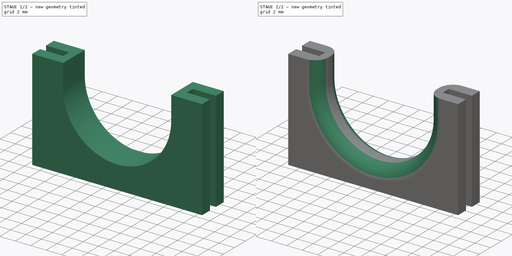
[diagram: build sequence overview — one tinted view per stage of 2, left to right]
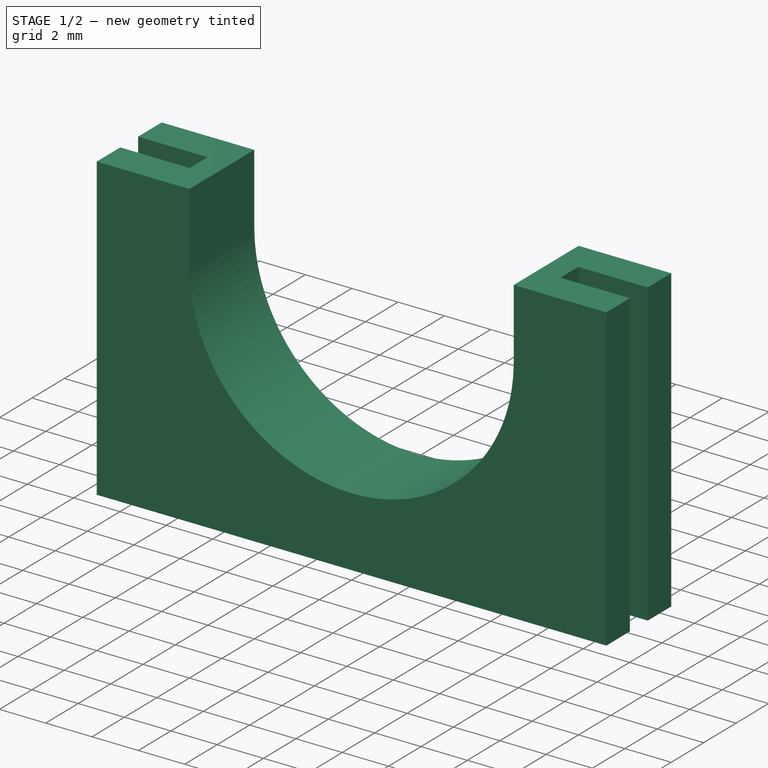
[diagram: stage 1 of 2 — iso view after this stage's code; geometry added in this stage tinted green]
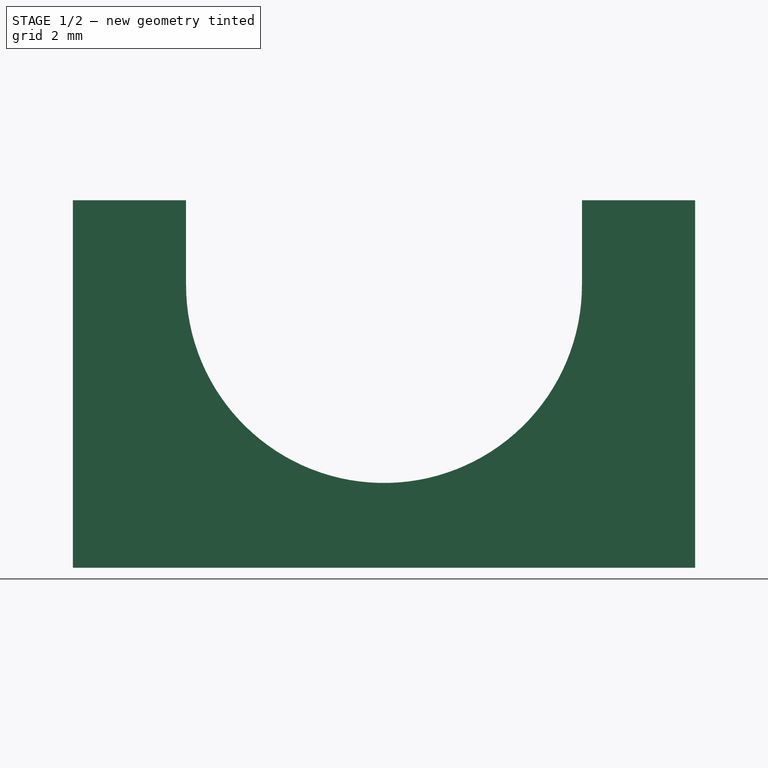
[diagram: stage 1 of 2 — front view after this stage's code; geometry added in this stage tinted green]
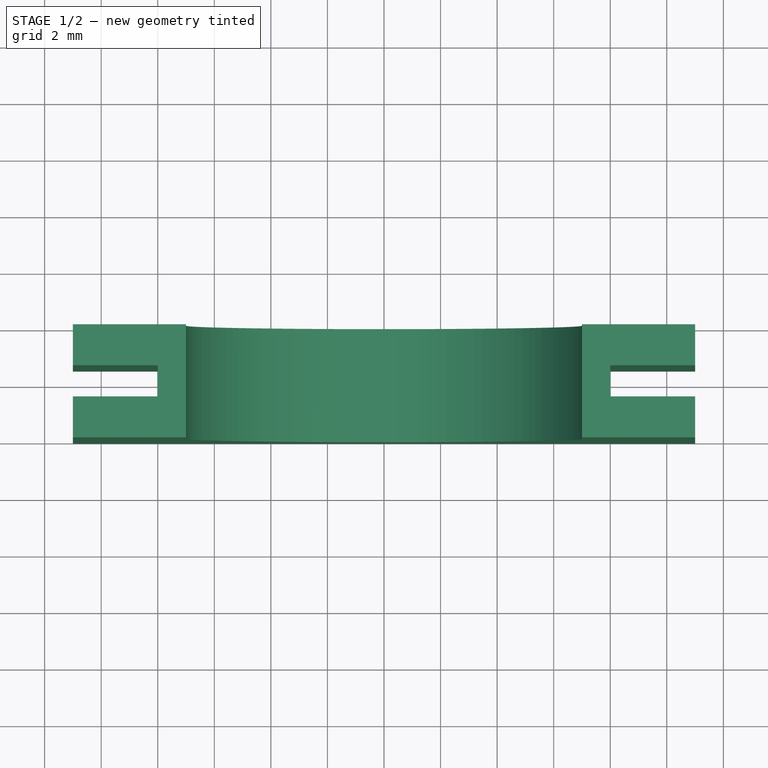
[diagram: stage 1 of 2 — top view after this stage's code; geometry added in this stage tinted green]
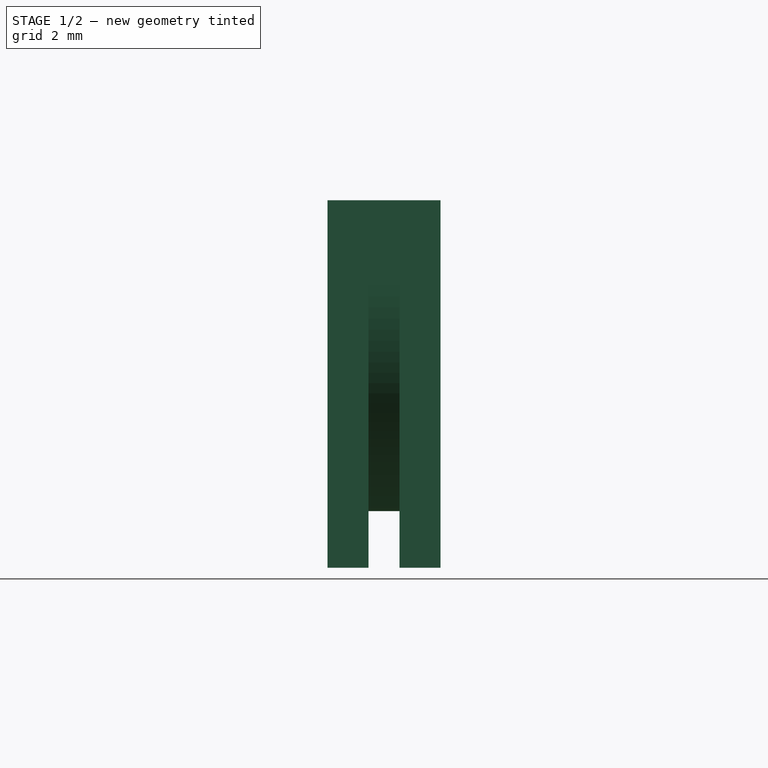
[diagram: stage 1 of 2 — right view after this stage's code; geometry added in this stage tinted green]
FCSTD DOCUMENT  (FreeCAD 0.19R24276 (Git))
Label: Kantenschutz
License: All rights reserved
LicenseURL: http://en.wikipedia.org/wiki/All_rights_reserved
objects: Sketcher::SketchObject×2, PartDesign::Pad×1, PartDesign::Pocket×1, PartDesign::Fillet×1, PartDesign::Body×1
note: 9 computed .brp shape members not serialized (recipe doc carries the construction recipe); baked Part::Feature solids carry a one-line shape summary decoded from their .brp

FEATURE [Sketcher::SketchObject] Sketch
  FullyConstrained = true
  MapMode = 5
  Placement = pos=(0,0,0) rot=(1,0,0;1.5708rad)
  Support = -> [XZ_Plane]
  sketch-geometry (9):
    g0: LineSegment StartX=11 StartY=0 StartZ=0 EndX=-11 EndY=0 EndZ=0
    g1: LineSegment StartX=-11 StartY=0 StartZ=0 EndX=-11 EndY=13 EndZ=0
    g2: LineSegment StartX=11 StartY=13 StartZ=0 EndX=11 EndY=0 EndZ=0
    g3: LineSegment StartX=-11 StartY=13 StartZ=0 EndX=-7 EndY=13 EndZ=0
    g4: LineSegment StartX=-7 StartY=13 StartZ=0 EndX=-7 EndY=10 EndZ=0
    g5: LineSegment StartX=11 StartY=13 StartZ=0 EndX=7 EndY=13 EndZ=0
    g6: LineSegment StartX=7 StartY=13 StartZ=0 EndX=7 EndY=10 EndZ=0
    g7: ArcOfCircle CenterX=2.799e-13 CenterY=10 CenterZ=0 NormalX=0 NormalY=0 NormalZ=1 AngleXU=0 Radius=7 StartAngle=3.14159 EndAngle=6.28319
    g8: GeomPoint X=0 Y=3 Z=0
  constraints (23):
    c: Coincident(g0,g1)
    c: Coincident(g2,g0)
    c: Vertical(g1)
    c: Vertical(g2)
    c: PointOnObject(g0,g-1)
    c: Coincident(g3,g1)
    c: Horizontal(g3)
    c: Coincident(g4,g3)
    c: Vertical(g4)
    c: Coincident(g2,g5)
    c: Horizontal(g5)
    c: Coincident(g5,g6)
    c: Coincident(g7,g6)
    c: Symmetric(g3,g5,g-2)
    c: Symmetric(g0,g0,g-2)
    c: Symmetric(g4,g6,g-2)
    c: DistanceX(g3,g5) = 14
    c: PointOnObject(g8,g7)
    c: PointOnObject(g8,g-2)
    c: DistanceY(g8,g5) = 10
    c: Tangent(g7,g4) = -1.5708
    c: DistanceY(g0,g8) = 3
    c: DistanceX(g5,g5) = 4
FEATURE [PartDesign::Pad] Pad
  Direction = (1,1,1)
  Length = 4
  Length2 = 100
  Midplane = true
  Placement = pos=(0,0,0) rot=(1,0,0;1.5708rad)
  Profile = -> Sketch
  Type = 0
FEATURE [Sketcher::SketchObject] Sketch001
  FullyConstrained = true
  MapMode = 5
  Placement = pos=(0,0,0) rot=(1,0,0;1.5708rad)
  Support = -> [XZ_Plane]
  sketch-geometry (8):
    g0: LineSegment StartX=8 StartY=10 StartZ=0 EndX=8 EndY=16 EndZ=0
    g1: LineSegment StartX=8 StartY=16 StartZ=0 EndX=12 EndY=16 EndZ=0
    g2: LineSegment StartX=12 StartY=16 StartZ=0 EndX=12 EndY=0 EndZ=0
    g3: LineSegment StartX=12 StartY=0 StartZ=0 EndX=-12 EndY=0 EndZ=0
    g4: LineSegment StartX=-12 StartY=0 StartZ=0 EndX=-12 EndY=16 EndZ=0
    g5: LineSegment StartX=-12 StartY=16 StartZ=0 EndX=-8 EndY=16 EndZ=0
    g6: LineSegment StartX=-8 StartY=16 StartZ=0 EndX=-8 EndY=10 EndZ=0
    g7: ArcOfCircle CenterX=0 CenterY=10 CenterZ=0 NormalX=0 NormalY=0 NormalZ=1 AngleXU=0 Radius=8 StartAngle=3.14159 EndAngle=6.28319
  constraints (21):
    c: Vertical(g0)
    c: Coincident(g0,g1)
    c: Coincident(g1,g2)
    c: PointOnObject(g2,g-1)
    c: Vertical(g2)
    c: Coincident(g2,g3)
    c: Coincident(g3,g4)
    c: Vertical(g4)
    c: Coincident(g4,g5)
    c: Horizontal(g5)
    c: Coincident(g5,g6)
    c: Vertical(g6)
    c: Tangent(g7,g6) = -1.5708
    c: Horizontal(g1)
    c: Tangent(g7,g0) = -1.5708
    c: Symmetric(g0,g5,g-2)
    c: Symmetric(g2,g3,g-2)
    c: DistanceX(g5,g0) = 16
    c: DistanceX(g1,g1) = 4
    c: DistanceY(g2,g2) = 16
    c: DistanceY(g2,g7) = 10
FEATURE [PartDesign::Pocket] Pocket
  BaseFeature = -> Pad
  Length = 1.1
  Length2 = 100
  Midplane = true
  Placement = pos=(0,0,0) rot=(1,0,0;1.5708rad)
  Profile = -> Sketch001
  Type = 0
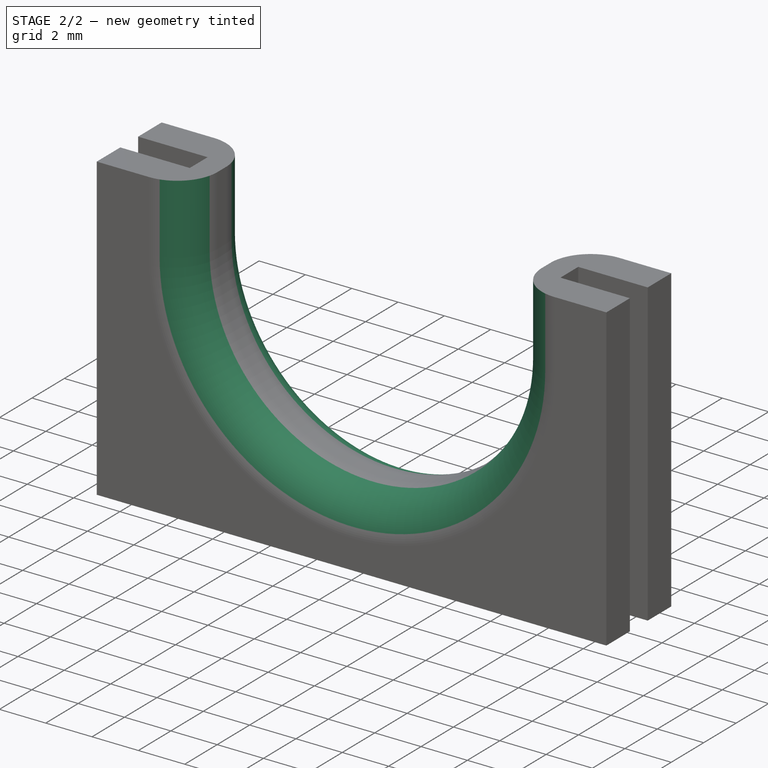
[diagram: stage 2 of 2 — iso view after this stage's code; geometry added in this stage tinted green]
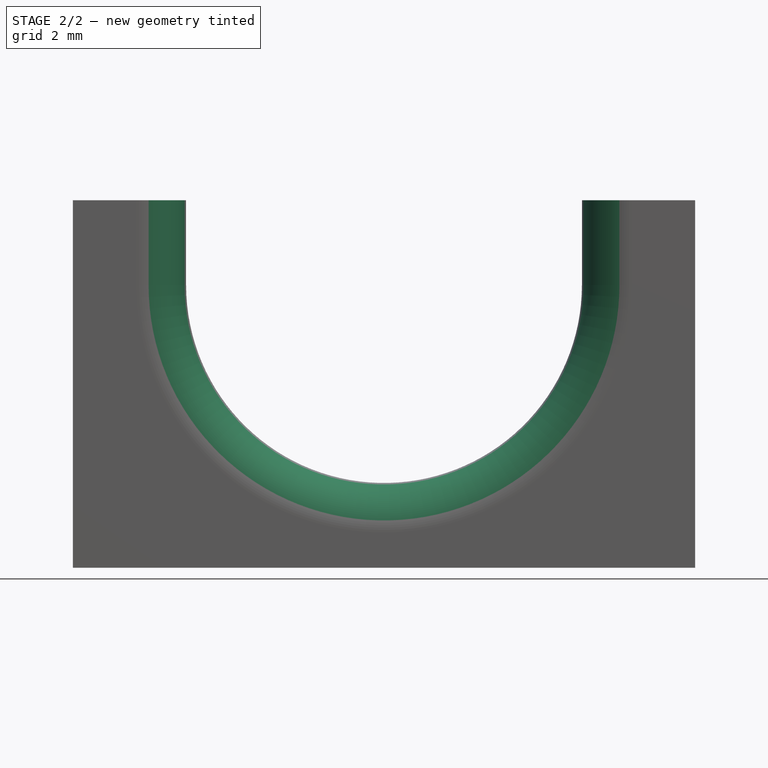
[diagram: stage 2 of 2 — front view after this stage's code; geometry added in this stage tinted green]
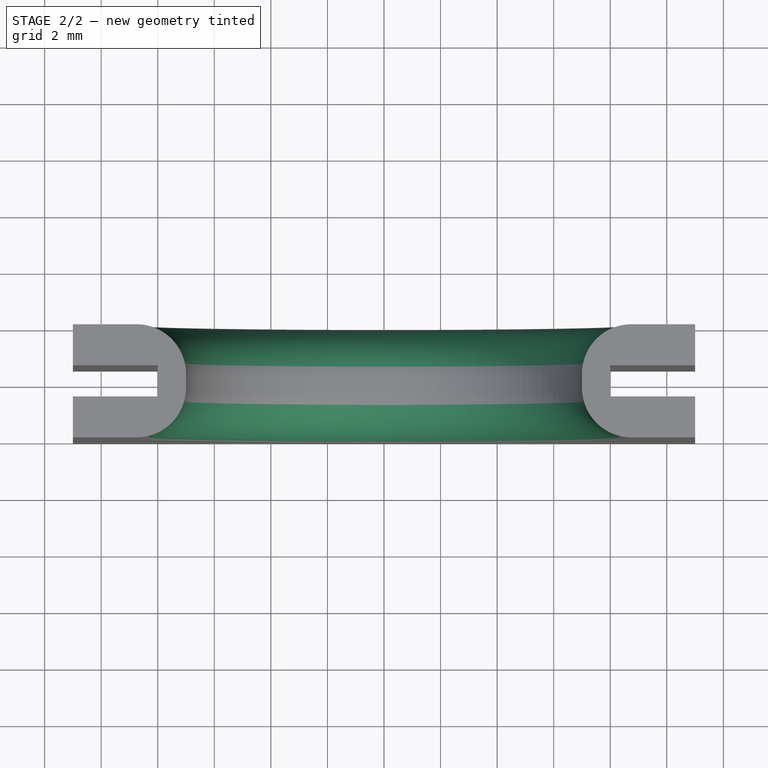
[diagram: stage 2 of 2 — top view after this stage's code; geometry added in this stage tinted green]
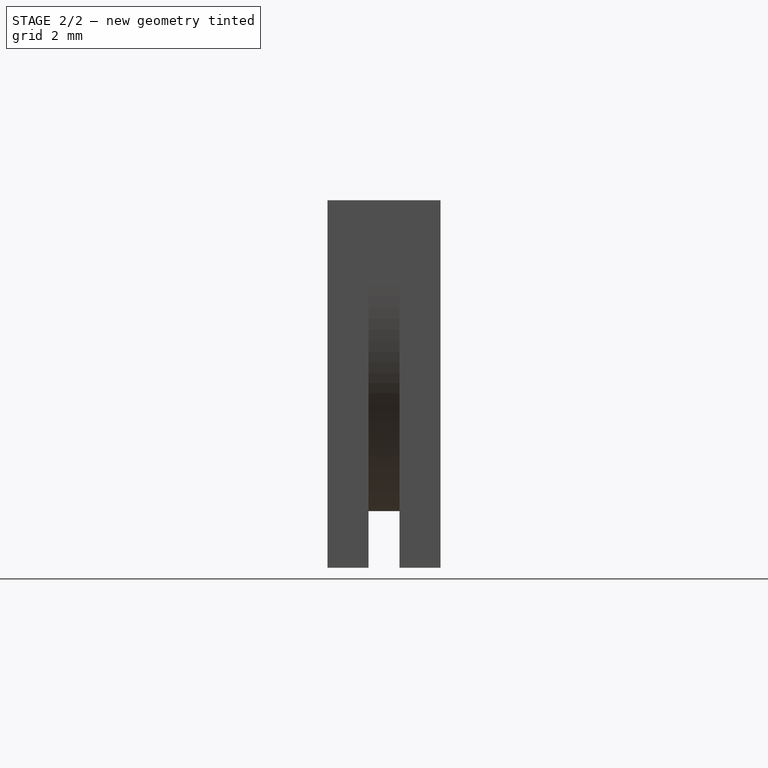
[diagram: stage 2 of 2 — right view after this stage's code; geometry added in this stage tinted green]
FEATURE [PartDesign::Fillet] Fillet
  Base = -> Pocket [Edge8,Edge29]
  BaseFeature = -> Pocket
  Placement = pos=(0,0,0) rot=(1,0,0;1.5708rad)
  Radius = 1.75
  SupportTransform = false
FEATURE [PartDesign::Body] Body
  Group = -> [Sketch,Pad,Sketch001,Pocket,Fillet]
  Origin = -> Origin
  Tip = -> Fillet
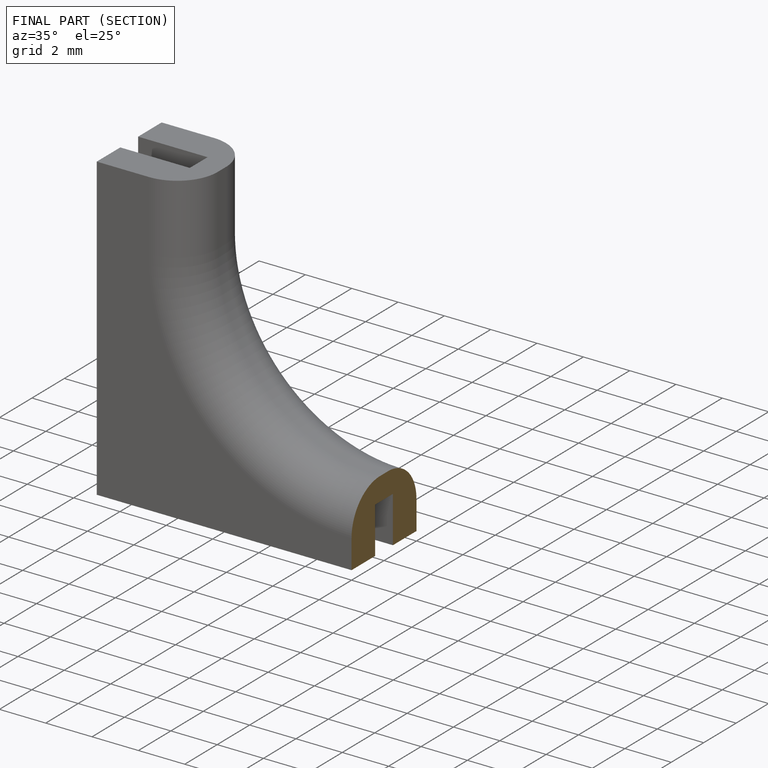
[diagram: finished part — half-section view (interior)]
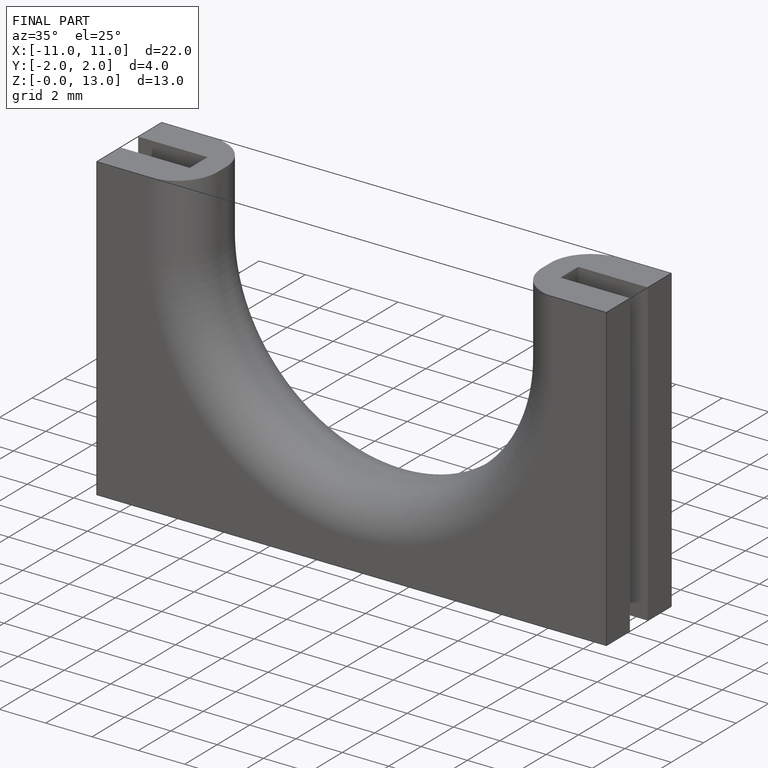
[diagram: finished part — iso view with bounding-box wireframe]
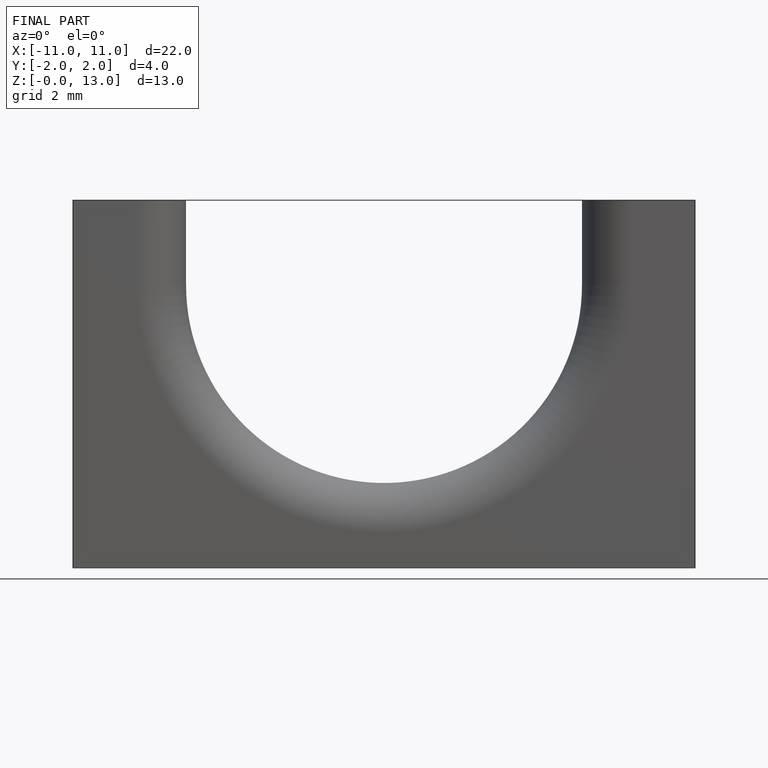
[diagram: finished part — front view with bounding-box wireframe]
